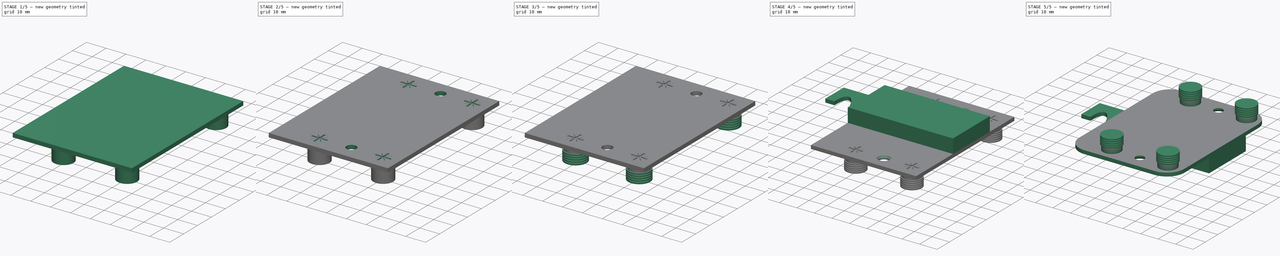
[diagram: build sequence overview — one tinted view per stage of 5, left to right]
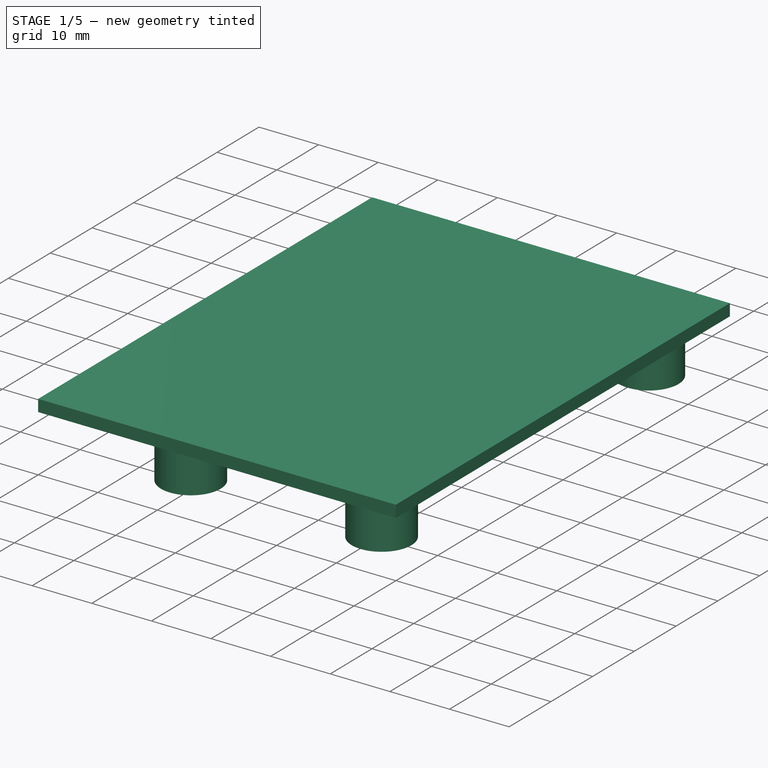
[diagram: stage 1 of 5 — iso view after this stage's code; geometry added in this stage tinted green]
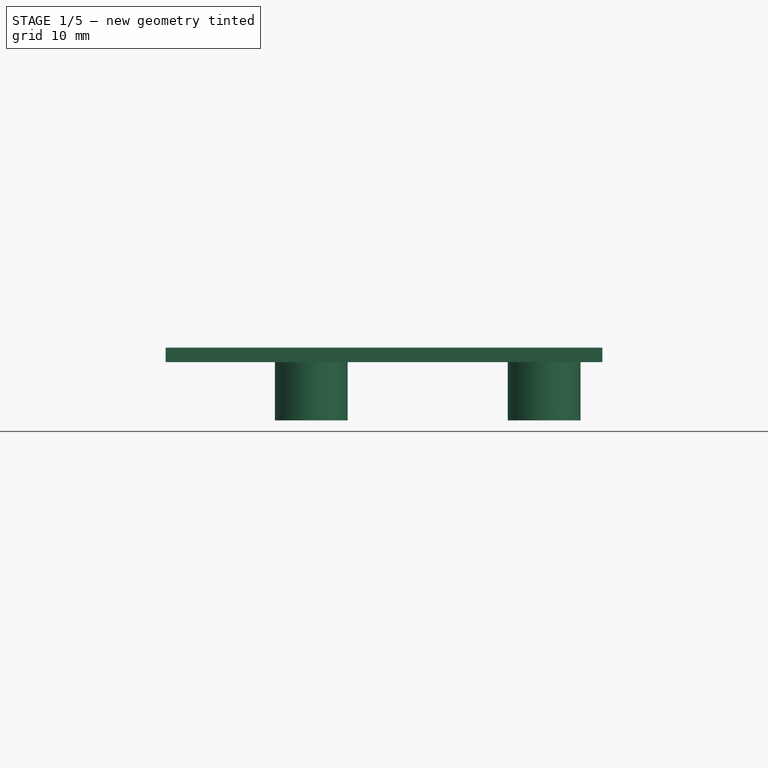
[diagram: stage 1 of 5 — front view after this stage's code; geometry added in this stage tinted green]
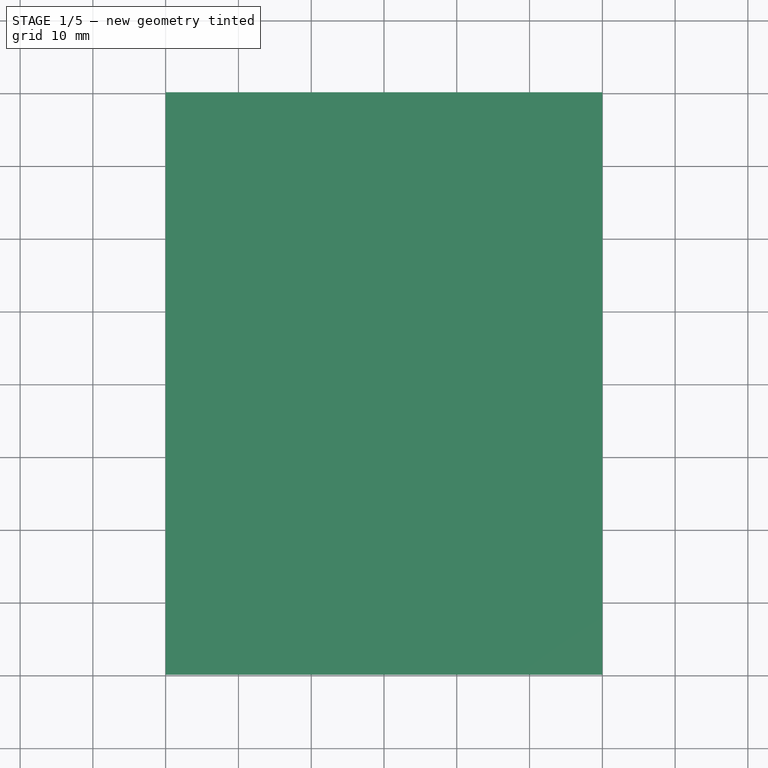
[diagram: stage 1 of 5 — top view after this stage's code; geometry added in this stage tinted green]
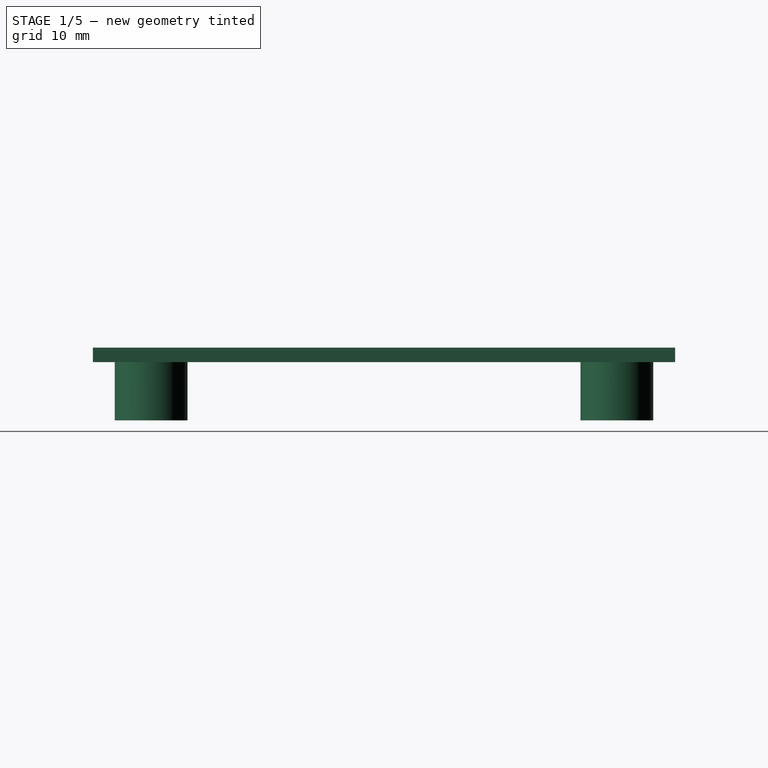
[diagram: stage 1 of 5 — right view after this stage's code; geometry added in this stage tinted green]
FCSTD DOCUMENT  (FreeCAD 1.1R20260325 (Git shallow))
Label: msf070
License: All rights reserved
LicenseURL: https://en.wikipedia.org/wiki/All_rights_reserved
objects: Sketcher::SketchObject×8, PartDesign::Mirrored×7, PartDesign::Pad×5, PartDesign::MultiTransform×4, PartDesign::Plane×2, App::LinkGroup×2, App::Point×2, PartDesign::Pocket×1, PartDesign::Groove×1, PartDesign::Chamfer×1, PartDesign::Fillet×1, PartDesign::Hole×1, PartDesign::Body×1, App::Part×1, Part::FeaturePython×1
note: 72 computed .brp shape members not serialized (recipe doc carries the construction recipe); baked Part::Feature solids carry a one-line shape summary decoded from their .brp

FEATURE [Sketcher::SketchObject] Sketch
  ArcFitTolerance = 0
  ExternalTypes = [0]
  FullyConstrained = true
  MakeInternals = false
  MapMode = 5
  _ExternalGeoVersion = 0
  sketch-geometry (4):
    g0: LineSegment StartX=0 StartY=0 StartZ=0 EndX=60 EndY=0 EndZ=0
    g1: LineSegment StartX=60 StartY=0 StartZ=0 EndX=60 EndY=-80 EndZ=0
    g2: LineSegment StartX=60 StartY=-80 StartZ=0 EndX=0 EndY=-80 EndZ=0
    g3: LineSegment StartX=0 StartY=-80 StartZ=0 EndX=0 EndY=0 EndZ=0
  constraints (11):
    c: Coincident(g0,g1)
    c: Coincident(g1,g2)
    c: Coincident(g2,g3)
    c: Coincident(g3,g0)
    c: Horizontal(g0)
    c: Horizontal(g2)
    c: Vertical(g1)
    c: Vertical(g3)
    c: DistanceX(g0,g0) = 60
    c: DistanceY(g1,g1) = 80
    c: Coincident(g0,g-1)
FEATURE [PartDesign::Pad] Pad
  Direction = (0,0,1)
  Length = 2
  Length2 = 10
  Profile = -> Sketch
  ReferenceAxis = -> Sketch [N_Axis]
  SideType = 0
  Suppressed = false
  Type = 0
  Type2 = 0
FEATURE [Sketcher::SketchObject] Sketch001
  ArcFitTolerance = 0
  ExternalGeometry = -> [Pad]
  ExternalTypes = [0]
  FullyConstrained = true
  MakeInternals = false
  MapMode = 5
  Placement = pos=(0,0,2) rot=(0,0,1;0rad)
  _ExternalGeoVersion = 0
  sketch-geometry (1):
    g0: Circle CenterX=52 CenterY=-8 CenterZ=0 NormalX=0 NormalY=0 NormalZ=1 AngleXU=0 Radius=5
  constraints (3):
    c: Diameter(g0) = 10
    c: DistanceX(g0,g-5) = 8
    c: DistanceY(g0,g-5) = 8
FEATURE [PartDesign::Pad] Pad001
  BaseFeature = -> Pad
  Direction = (0,0,1)
  Length = 10
  Length2 = 10
  Profile = -> Sketch001
  ReferenceAxis = -> Sketch001 [N_Axis]
  Reversed = true
  SideType = 0
  Suppressed = false
  Type = 0
  Type2 = 0
FEATURE [PartDesign::Plane] DatumPlane
  AttachmentOffset = pos=(36,0,0) rot=(0,1,0;1.5708rad)
  Length = 64.4914
  MapMode = 5
  Placement = pos=(36,0,2) rot=(0,1,0;1.5708rad)
  ResizeMode = 0
  Width = 119.491
FEATURE [PartDesign::Plane] DatumPlane001
  AttachmentOffset = pos=(0,0,-40) rot=(0,0,1;0rad)
  Length = 98.0384
  MapMode = 5
  Placement = pos=(0,-40,9e-15) rot=(0,0.707107,0.707107;3.14159rad)
  ResizeMode = 0
  Width = 63.0384
FEATURE [PartDesign::Mirrored] Mirrored
  MirrorPlane = -> DatumPlane
  Suppressed = false
  TransformMode = 0
FEATURE [PartDesign::Mirrored] Mirrored001
  MirrorPlane = -> DatumPlane001
  Suppressed = false
  TransformMode = 0
FEATURE [PartDesign::MultiTransform] MultiTransform
  BaseFeature = -> Pad001
  Originals = -> [Pad001]
  Suppressed = false
  TransformMode = 0
  Transformations = -> [Mirrored,Mirrored001]
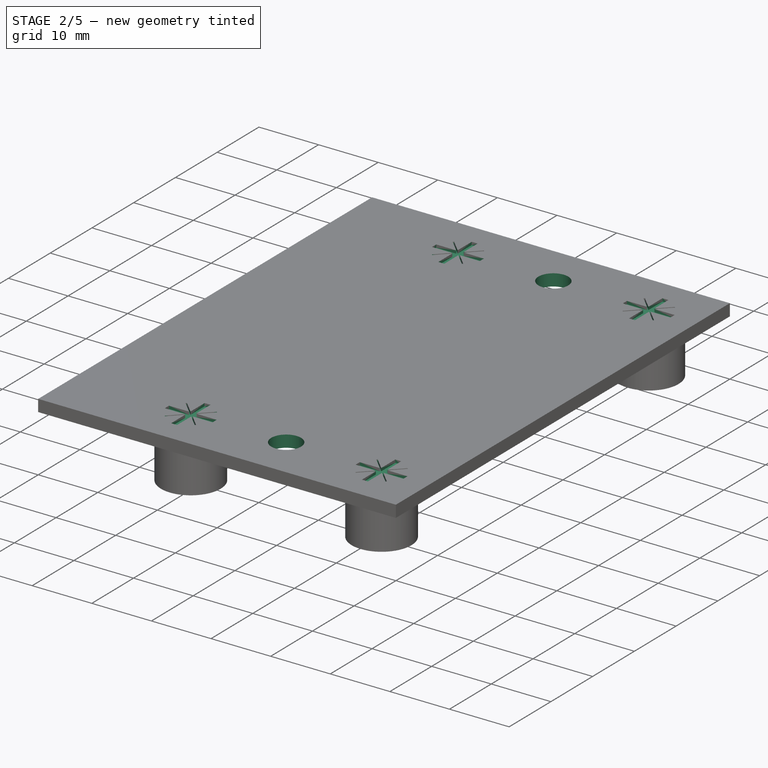
[diagram: stage 2 of 5 — iso view after this stage's code; geometry added in this stage tinted green]
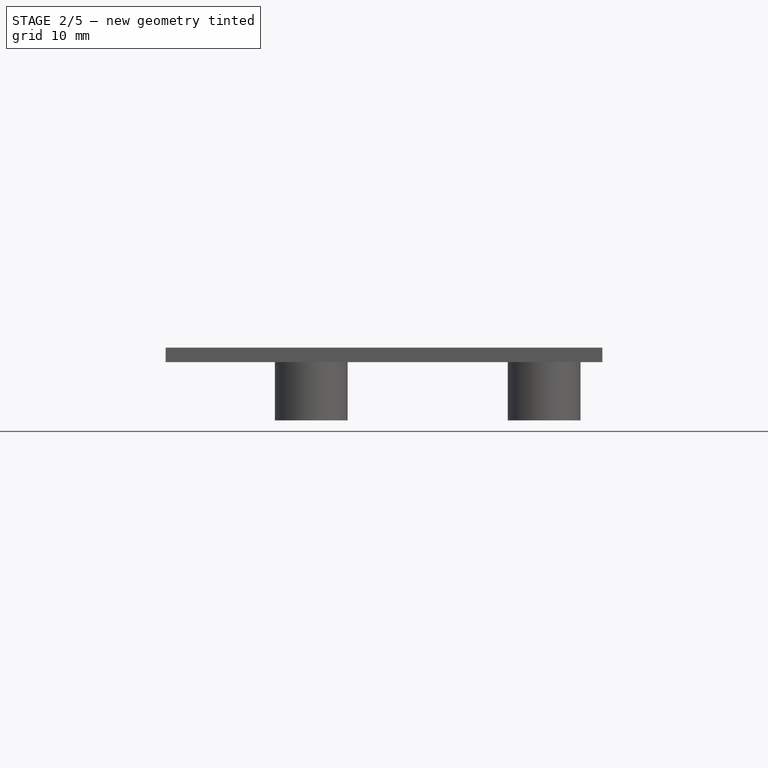
[diagram: stage 2 of 5 — front view after this stage's code; geometry added in this stage tinted green]
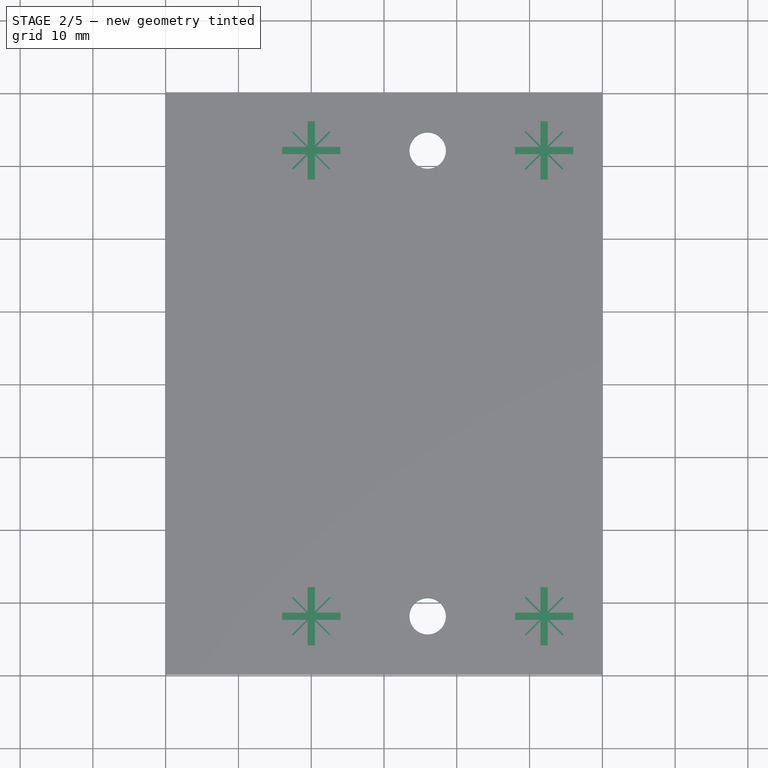
[diagram: stage 2 of 5 — top view after this stage's code; geometry added in this stage tinted green]
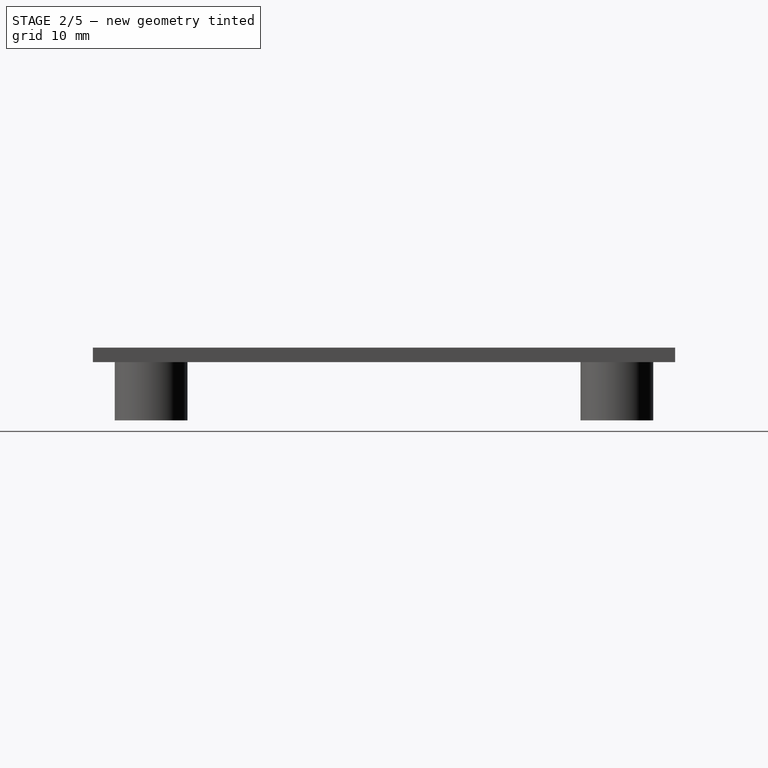
[diagram: stage 2 of 5 — right view after this stage's code; geometry added in this stage tinted green]
FEATURE [Sketcher::SketchObject] Sketch002
  ArcFitTolerance = 0
  ExternalGeometry = -> [MultiTransform]
  ExternalTypes = [0]
  FullyConstrained = false
  MakeInternals = false
  MapMode = 5
  Placement = pos=(0,0,2) rot=(0,0,1;0rad)
  _ExternalGeoVersion = 0
  sketch-geometry (25):
    g0: LineSegment StartX=52.6414 StartY=-8.5 StartZ=0 EndX=56 EndY=-8.5 EndZ=0
    g1: LineSegment StartX=56 StartY=-8.5 StartZ=0 EndX=56 EndY=-7.5 EndZ=0
    g2: LineSegment StartX=56 StartY=-7.5 StartZ=0 EndX=52.6414 EndY=-7.5 EndZ=0
    g3: LineSegment StartX=52.6414 StartY=-7.5 StartZ=0 EndX=54.6414 EndY=-5.5 EndZ=0
    g4: LineSegment StartX=54.6414 StartY=-5.5 StartZ=0 EndX=54.5 EndY=-5.35858 EndZ=0
    g5: LineSegment StartX=54.5 StartY=-5.35858 StartZ=0 EndX=52.5 EndY=-7.35858 EndZ=0
    g6: LineSegment StartX=52.5 StartY=-7.35858 StartZ=0 EndX=52.5 EndY=-4 EndZ=0
    g7: LineSegment StartX=52.5 StartY=-4 StartZ=0 EndX=51.5 EndY=-4 EndZ=0
    g8: LineSegment StartX=51.5 StartY=-4 StartZ=0 EndX=51.5 EndY=-7.35858 EndZ=0
    g9: LineSegment StartX=51.5 StartY=-7.35858 StartZ=0 EndX=49.5 EndY=-5.35858 EndZ=0
    g10: LineSegment StartX=49.5 StartY=-5.35858 StartZ=0 EndX=49.3586 EndY=-5.5 EndZ=0
    g11: LineSegment StartX=49.3586 StartY=-5.5 StartZ=0 EndX=51.3586 EndY=-7.5 EndZ=0
    g12: LineSegment StartX=51.3586 StartY=-7.5 StartZ=0 EndX=48 EndY=-7.5 EndZ=0
    g13: LineSegment StartX=48 StartY=-7.5 StartZ=0 EndX=48 EndY=-8.5 EndZ=0
    g14: LineSegment StartX=52.6414 StartY=-8.5 StartZ=0 EndX=54.6414 EndY=-10.5 EndZ=0
    g15: LineSegment StartX=54.6414 StartY=-10.5 StartZ=0 EndX=54.5 EndY=-10.6414 EndZ=0
    g16: LineSegment StartX=54.5 StartY=-10.6414 StartZ=0 EndX=52.5 EndY=-8.64142 EndZ=0
    g17: LineSegment StartX=52.5 StartY=-8.64142 StartZ=0 EndX=52.5 EndY=-12 EndZ=0
    g18: LineSegment StartX=52.5 StartY=-12 StartZ=0 EndX=51.5 EndY=-12 EndZ=0
    g19: LineSegment StartX=51.5 StartY=-12 StartZ=0 EndX=51.5 EndY=-8.64142 EndZ=0
    g20: LineSegment StartX=51.5 StartY=-8.64142 StartZ=0 EndX=49.5 EndY=-10.6414 EndZ=0
    g21: LineSegment StartX=49.5 StartY=-10.6414 StartZ=0 EndX=49.3586 EndY=-10.5 EndZ=0
    g22: LineSegment StartX=49.3586 StartY=-10.5 StartZ=0 EndX=51.3586 EndY=-8.5 EndZ=0
    g23: LineSegment StartX=51.3586 StartY=-8.5 StartZ=0 EndX=48 EndY=-8.5 EndZ=0
    g24: Circle [constr] CenterX=52 CenterY=-8 CenterZ=0 NormalX=0 NormalY=0 NormalZ=1 AngleXU=0 Radius=0.813278
  constraints (71):
    c: Coincident(g0,g1)
    c: Coincident(g1,g2)
    c: Coincident(g2,g3)
    c: Coincident(g3,g4)
    c: Coincident(g4,g5)
    c: Coincident(g5,g6)
    c: Coincident(g6,g7)
    c: Coincident(g7,g8)
    c: Coincident(g8,g9)
    c: Coincident(g9,g10)
    c: Coincident(g10,g11)
    c: Coincident(g11,g12)
    c: Coincident(g12,g13)
    c: Coincident(g0,g14)
    c: Coincident(g14,g15)
    c: Coincident(g15,g16)
    c: Coincident(g16,g17)
    c: Coincident(g17,g18)
    c: Coincident(g18,g19)
    c: Coincident(g19,g20)
    c: Coincident(g20,g21)
    c: Coincident(g21,g22)
    c: Coincident(g22,g23)
    c: Coincident(g23,g13)
    c: Equal(g1,g13)
    c: Equal(g18,g7)
    c: Equal(g6,g8)
    c: Equal(g10,g4)
    c: Equal(g4,g15)
    c: Equal(g15,g21)
    c: Equal(g0,g2)
    c: Equal(g2,g6)
    c: Equal(g8,g12)
    c: Equal(g12,g19)
    c: Equal(g19,g17)
    c: Equal(g14,g16)
    c: Equal(g16,g20)
    c: Equal(g20,g22)
    c: Equal(g22,g11)
    c: Equal(g11,g9)
    c: Equal(g9,g5)
    c: Equal(g5,g3)
    c: Angle(g1,g0) = 1.5708
    c: Angle(g2,g1) = 1.5708
    c: Angle(g4,g3) = 1.5708
    c: Angle(g5,g4) = 1.5708
    c: Angle(g7,g6) = 1.5708
    c: Angle(g8,g7) = 1.5708
    c: Angle(g10,g9) = 1.5708
    c: Angle(g11,g10) = 1.5708
    c: Angle(g13,g12) = 1.5708
    c: Angle(g23,g13) = 1.5708
    c: Angle(g21,g22) = 1.5708
    c: Angle(g20,g21) = 1.5708
    c: Angle(g18,g19) = 1.5708
    c: Angle(g17,g18) = 1.5708
    c: Angle(g15,g16) = 1.5708
    c: Angle(g14,g15) = 1.5708
    c: Distance(g22,g19) = 0.2
    c: Distance(g0,g2) = 1
    c: Equal(g13,g7)
    c: Parallel(g0,g23)
    c: Parallel(g6,g17)
    c: Angle(g2,g6) = 1.5708
    c: Angle(g20,g16) = 1.5708
    c: Angle(g5,g9) = 1.5708
    c: PointOnObject(g8,g24)
    c: PointOnObject(g11,g24)
    c: PointOnObject(g22,g24)
    c: PointOnObject(g19,g24)
    c: Horizontal(g2)
FEATURE [PartDesign::Pocket] Pocket
  BaseFeature = -> MultiTransform
  Direction = (0,0,-1)
  Length = 0.5
  Length2 = 5
  Profile = -> Sketch002
  ReferenceAxis = -> Sketch002 [N_Axis]
  SideType = 0
  Suppressed = false
  Type = 0
  Type2 = 0
FEATURE [PartDesign::Mirrored] Mirrored002
  MirrorPlane = -> DatumPlane
  Suppressed = false
  TransformMode = 0
FEATURE [PartDesign::Mirrored] Mirrored003
  MirrorPlane = -> DatumPlane001
  Suppressed = false
  TransformMode = 0
FEATURE [PartDesign::MultiTransform] MultiTransform001
  BaseFeature = -> Pocket
  Originals = -> [Pocket]
  Suppressed = false
  TransformMode = 0
  Transformations = -> [Mirrored002,Mirrored003]
FEATURE [Sketcher::SketchObject] Sketch003
  ArcFitTolerance = 0
  ExternalGeometry = -> [MultiTransform001]
  ExternalTypes = [0]
  FullyConstrained = true
  MakeInternals = false
  MapMode = 5
  Placement = pos=(0,0,2) rot=(0,0,1;0rad)
  _ExternalGeoVersion = 0
  sketch-geometry (1):
    g0: Circle CenterX=36 CenterY=-8 CenterZ=0 NormalX=0 NormalY=0 NormalZ=1 AngleXU=0 Radius=2.5
  constraints (3):
    c: Diameter(g0) = 5
    c: DistanceY(g0,g-4) = 8
    c: DistanceX(g0,g-4) = 24
FEATURE [PartDesign::Mirrored] Mirrored004
  MirrorPlane = -> DatumPlane001
  Suppressed = false
  TransformMode = 0
FEATURE [PartDesign::MultiTransform] MultiTransform002
  BaseFeature = -> MultiTransform001
  Suppressed = false
  TransformMode = 0
  Transformations = -> [Mirrored004]
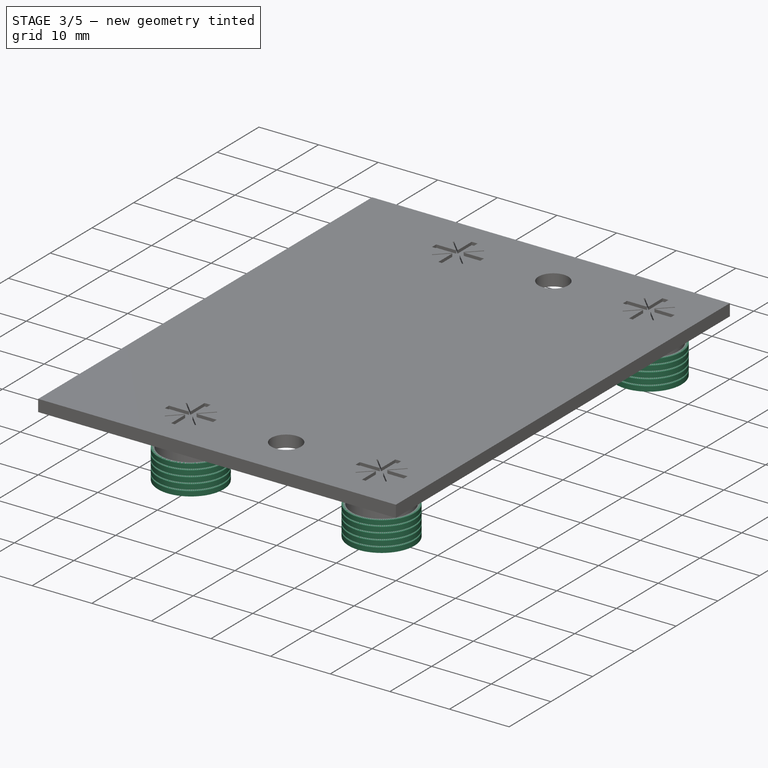
[diagram: stage 3 of 5 — iso view after this stage's code; geometry added in this stage tinted green]
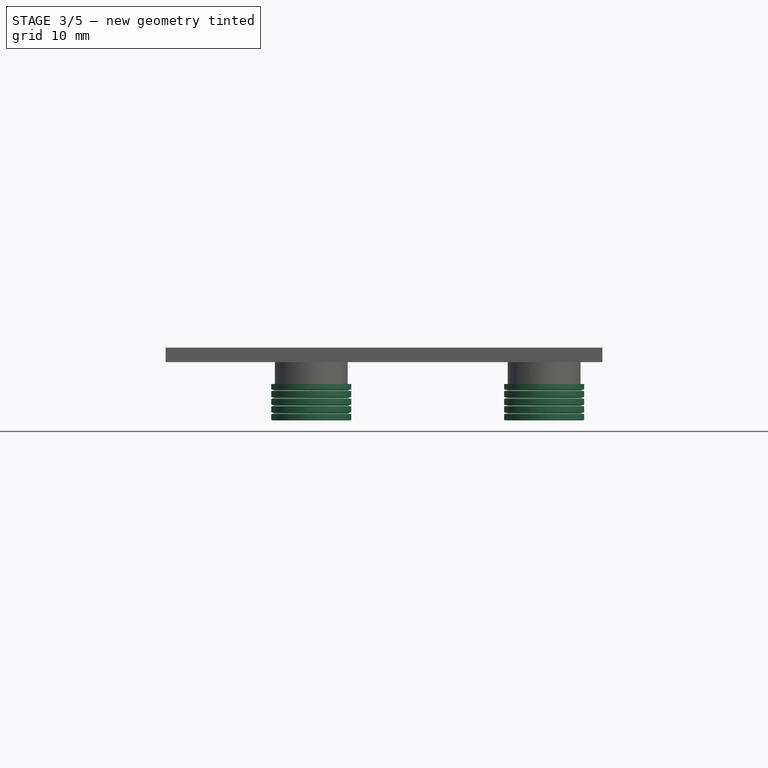
[diagram: stage 3 of 5 — front view after this stage's code; geometry added in this stage tinted green]
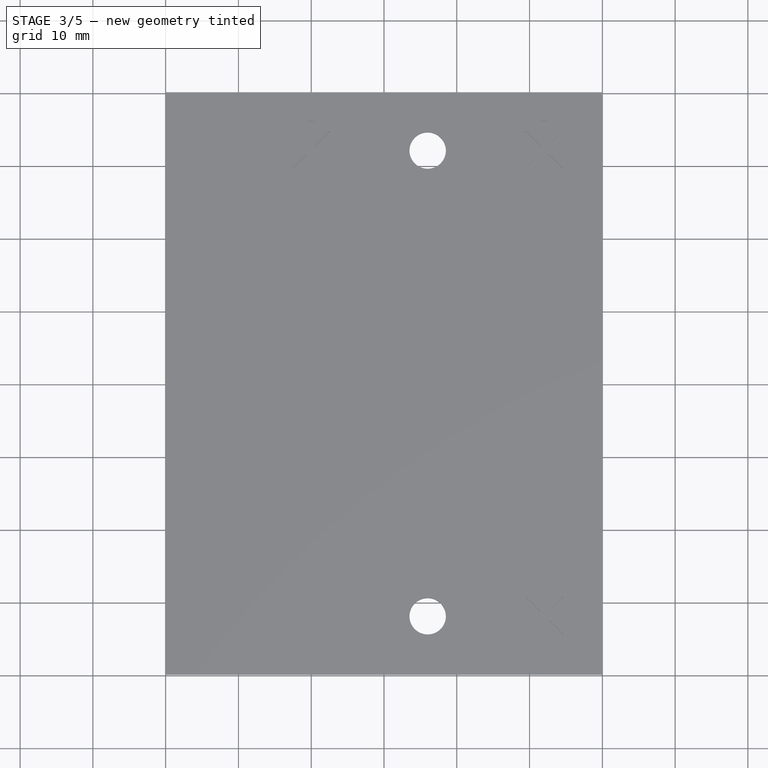
[diagram: stage 3 of 5 — top view after this stage's code; geometry added in this stage tinted green]
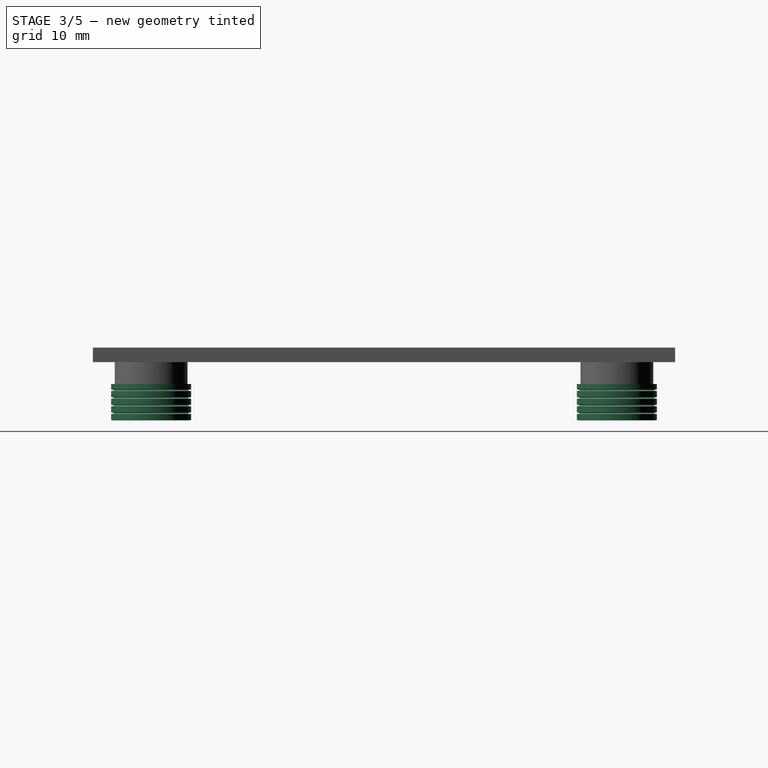
[diagram: stage 3 of 5 — right view after this stage's code; geometry added in this stage tinted green]
FEATURE [Sketcher::SketchObject] Sketch004
  ArcFitTolerance = 0
  ExternalGeometry = -> [MultiTransform002]
  ExternalTypes = [0]
  FullyConstrained = true
  MakeInternals = false
  MapMode = 5
  Placement = pos=(0,0,-8) rot=(1,0,0;3.14159rad)
  _ExternalGeoVersion = 0
  sketch-geometry (1):
    g0: Circle CenterX=20 CenterY=8 CenterZ=0 NormalX=0 NormalY=0 NormalZ=1 AngleXU=0 Radius=5.5
  constraints (2):
    c: Coincident(g0,g-3)
    c: Diameter(g0) = 11
FEATURE [PartDesign::Pad] Pad002
  BaseFeature = -> MultiTransform002
  Direction = (0,-1e-16,-1)
  Length = 5
  Length2 = 10
  Profile = -> Sketch004
  ReferenceAxis = -> Sketch004 [N_Axis]
  Reversed = true
  SideType = 0
  Suppressed = false
  Type = 0
  Type2 = 0
FEATURE [Sketcher::SketchObject] Sketch005
  ArcFitTolerance = 0
  AttachmentOffset = pos=(-8,0,20) rot=(0,0,1;0rad)
  ExternalTypes = [0]
  FullyConstrained = true
  MakeInternals = false
  MapMode = 5
  Placement = pos=(20,-8,0) rot=(0.57735,0.57735,0.57735;2.0944rad)
  _ExternalGeoVersion = 0
  sketch-geometry (13):
    g0: LineSegment StartX=7.52 StartY=-2.22 StartZ=0 EndX=5.03 EndY=-2.79 EndZ=0
    g1: LineSegment StartX=5.03 StartY=-2.79 StartZ=0 EndX=6.9897 EndY=-3.39312 EndZ=0
    g2: LineSegment StartX=6.9897 StartY=-3.39312 StartZ=0 EndX=5.03 EndY=-3.84172 EndZ=0
    g3: LineSegment StartX=5.03 StartY=-3.84172 StartZ=0 EndX=6.9897 EndY=-4.44484 EndZ=0
    g4: LineSegment StartX=6.9897 StartY=-4.44484 StartZ=0 EndX=5.03 EndY=-4.89344 EndZ=0
    g5: LineSegment StartX=5.03 StartY=-4.89344 StartZ=0 EndX=6.9897 EndY=-5.49656 EndZ=0
    g6: LineSegment StartX=6.9897 StartY=-5.49656 StartZ=0 EndX=5.03 EndY=-5.94516 EndZ=0
    g7: LineSegment StartX=5.03 StartY=-5.94516 StartZ=0 EndX=6.9897 EndY=-6.54828 EndZ=0
    g8: LineSegment StartX=6.9897 StartY=-6.54828 StartZ=0 EndX=5.03 EndY=-6.99688 EndZ=0
    g9: LineSegment StartX=5.03 StartY=-6.99688 StartZ=0 EndX=6.9897 EndY=-7.6 EndZ=0
    g10: LineSegment StartX=6.9897 StartY=-7.6 StartZ=0 EndX=5.03 EndY=-8.04861 EndZ=0
    g11: LineSegment StartX=5.03 StartY=-8.04861 StartZ=0 EndX=7.55 EndY=-8.19 EndZ=0
    g12: LineSegment StartX=7.55 StartY=-8.19 StartZ=0 EndX=7.52 EndY=-2.22 EndZ=0
  constraints (39):
    c: Coincident(g0,g1)
    c: Coincident(g1,g2)
    c: Coincident(g2,g3)
    c: Coincident(g3,g4)
    c: Coincident(g4,g5)
    c: Coincident(g5,g6)
    c: Coincident(g6,g7)
    c: Coincident(g7,g8)
    c: Coincident(g8,g9)
    c: Coincident(g9,g10)
    c: Coincident(g10,g11)
    c: Coincident(g11,g12)
    c: Coincident(g12,g0)
    c: Vertical(g1,g3)
    c: Vertical(g3,g5)
    c: Vertical(g5,g7)
    c: Vertical(g7,g9)
    c: Vertical(g0,g2)
    c: Vertical(g2,g4)
    c: Vertical(g4,g6)
    c: Vertical(g6,g8)
    c: Vertical(g8,g10)
    c: Angle(g1,g2) = 0.523599
    c: Angle(g3,g4) = 0.523599
    c: Angle(g5,g6) = 0.523599
    c: Angle(g7,g8) = 0.523599
    c: Angle(g9,g10) = 0.523599
    c: Angle(g3,g2) = 0.523599
    c: Angle(g5,g4) = 0.523599
    c: Angle(g7,g6) = 0.523599
    c: Angle(g9,g8) = 0.523599
    c: Angle(g1,g0) = 0.523599
    c: DistanceY(g0,g-1) = 2.22
    c: DistanceY(g12,g-1) = 8.19
    c: DistanceX(g-1,g0) = 7.52
    c: DistanceX(g-1,g0) = 5.03
    c: DistanceX(g-1,g11) = 7.55
    c: DistanceY(g9,g-1) = 7.6
    c: DistanceY(g0,g-1) = 2.79
FEATURE [PartDesign::Groove] Groove
  Angle = 360
  Angle2 = 0
  Axis = (1e-16,-1e-16,1)
  Base = (20,-8,0)
  BaseFeature = -> Pad002
  Profile = -> Sketch005
  ReferenceAxis = -> Sketch005 [V_Axis]
  Suppressed = false
  Type = 0
FEATURE [PartDesign::Mirrored] Mirrored005
  MirrorPlane = -> DatumPlane
  Suppressed = false
  TransformMode = 0
FEATURE [PartDesign::Mirrored] Mirrored006
  MirrorPlane = -> DatumPlane001
  Suppressed = false
  TransformMode = 0
FEATURE [PartDesign::MultiTransform] MultiTransform003
  BaseFeature = -> Groove
  Originals = -> [Pad002,Groove]
  Suppressed = false
  TransformMode = 0
  Transformations = -> [Mirrored005,Mirrored006]
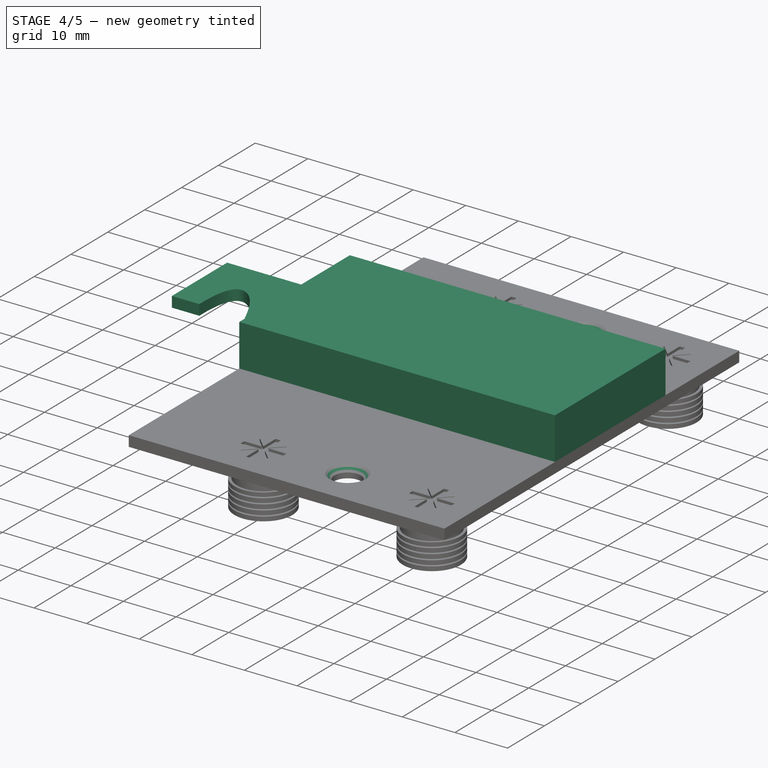
[diagram: stage 4 of 5 — iso view after this stage's code; geometry added in this stage tinted green]
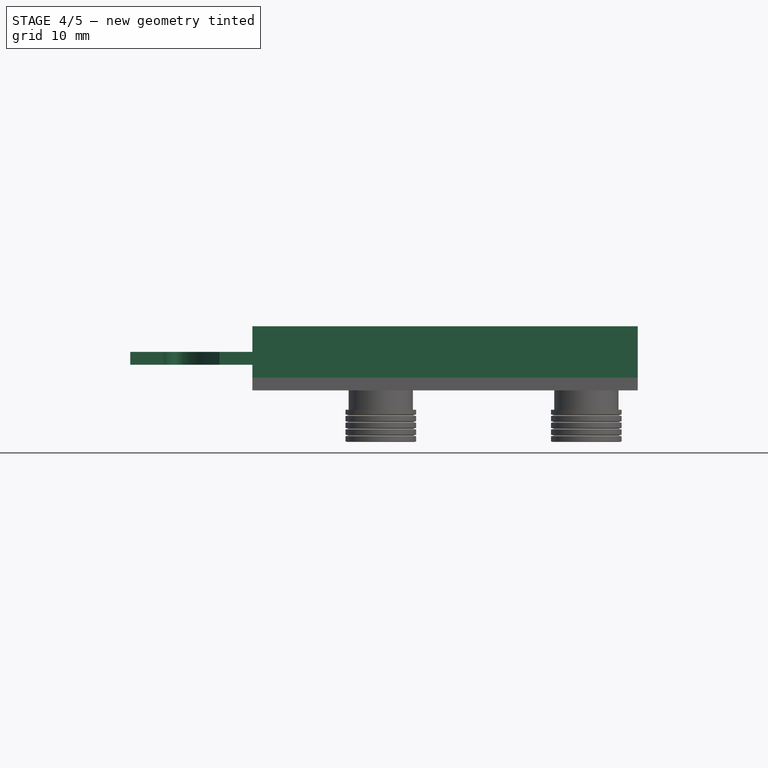
[diagram: stage 4 of 5 — front view after this stage's code; geometry added in this stage tinted green]
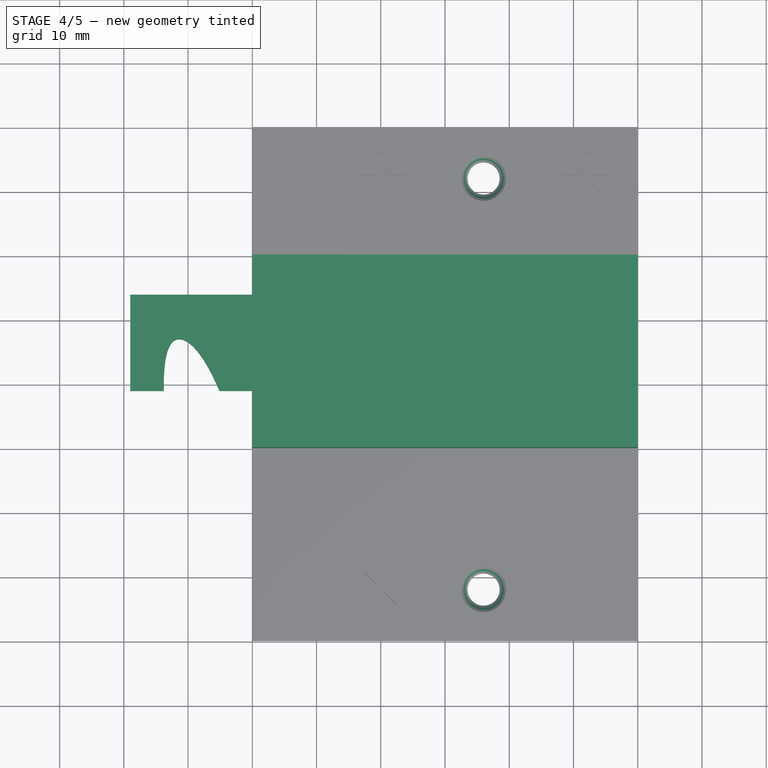
[diagram: stage 4 of 5 — top view after this stage's code; geometry added in this stage tinted green]
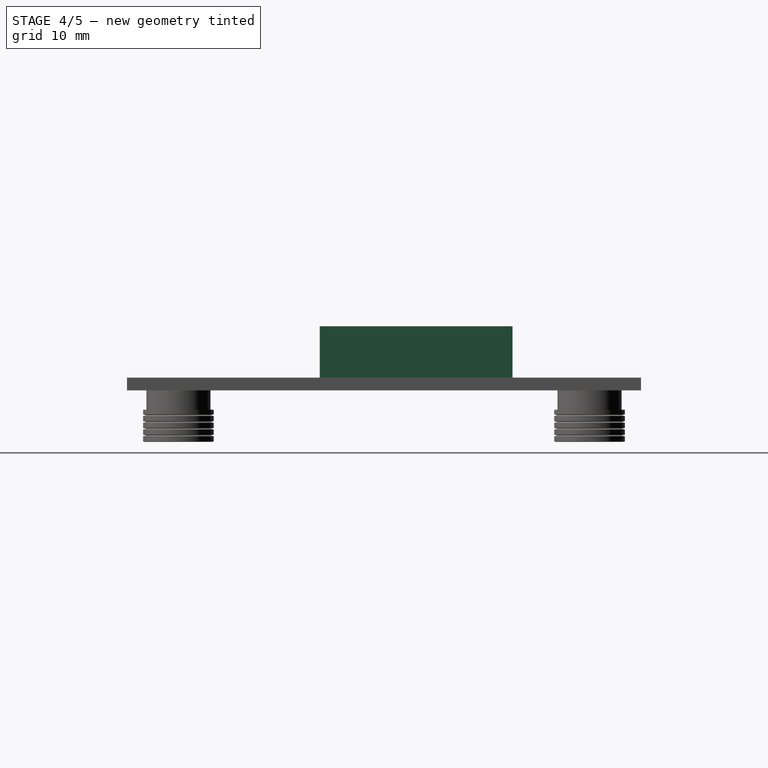
[diagram: stage 4 of 5 — right view after this stage's code; geometry added in this stage tinted green]
FEATURE [Sketcher::SketchObject] Sketch006
  ArcFitTolerance = 0
  ExternalGeometry = -> [MultiTransform003]
  ExternalTypes = [0]
  FullyConstrained = true
  MakeInternals = false
  MapMode = 5
  Placement = pos=(0,0,2) rot=(0,0,1;0rad)
  _ExternalGeoVersion = 0
  sketch-geometry (4):
    g0: LineSegment StartX=60 StartY=-50 StartZ=0 EndX=0 EndY=-50 EndZ=0
    g1: LineSegment StartX=0 StartY=-50 StartZ=0 EndX=0 EndY=-20 EndZ=0
    g2: LineSegment StartX=0 StartY=-20 StartZ=0 EndX=60 EndY=-20 EndZ=0
    g3: LineSegment StartX=60 StartY=-20 StartZ=0 EndX=60 EndY=-50 EndZ=0
  constraints (12):
    c: Coincident(g0,g1)
    c: Coincident(g1,g2)
    c: Coincident(g2,g3)
    c: Coincident(g3,g0)
    c: Horizontal(g0)
    c: Horizontal(g2)
    c: Vertical(g1)
    c: Vertical(g3)
    c: PointOnObject(g0,g-3)
    c: PointOnObject(g1,g-2)
    c: DistanceY(g1,g-1) = 20
    c: DistanceY(g1,g1) = 30
FEATURE [PartDesign::Pad] Pad003
  BaseFeature = -> MultiTransform003
  Direction = (0,0,1)
  Length = 8
  Length2 = 10
  Profile = -> Sketch006
  ReferenceAxis = -> Sketch006 [N_Axis]
  SideType = 0
  Suppressed = false
  Type = 0
  Type2 = 0
FEATURE [Sketcher::SketchObject] Sketch007
  ArcFitTolerance = 0
  AttachmentOffset = pos=(0,0,-5) rot=(0,0,1;0rad)
  ExternalTypes = [0]
  FullyConstrained = true
  MakeInternals = false
  MapMode = 5
  Placement = pos=(0,0,5) rot=(0,0,1;0rad)
  _ExternalGeoVersion = 0
  sketch-geometry (14):
    g0: LineSegment StartX=49.15 StartY=-26.17 StartZ=0 EndX=-19 EndY=-26.17 EndZ=0
    g1: LineSegment StartX=-19 StartY=-26.17 StartZ=0 EndX=-19 EndY=-41.17 EndZ=0
    g2: LineSegment StartX=49.15 StartY=-41.17 StartZ=0 EndX=49.15 EndY=-26.17 EndZ=0
    g3: LineSegment StartX=-19 StartY=-41.17 StartZ=0 EndX=-13.78 EndY=-41.17 EndZ=0
    g4-g8: Circle [constr] x5 (B-spline internal-alignment scaffolding for g9; pole/knot coordinates omitted)
    g9: BSplineCurve PolesCount=5 KnotsCount=3 Degree=3 IsPeriodic=0
    g10: GeomPoint [constr] X=-13.78 Y=-41.17 Z=0
    g11: GeomPoint [constr] X=-11.02 Y=-33.16 Z=0
    g12: GeomPoint [constr] X=-5.11 Y=-41.17 Z=0
    g13: LineSegment StartX=-5.11 StartY=-41.17 StartZ=0 EndX=49.15 EndY=-41.17 EndZ=0
  constraints (30):
    c: Coincident(g0,g1)
    c: Coincident(g2,g0)
    c: Horizontal(g0)
    c: Vertical(g1)
    c: Vertical(g2)
    c: DistanceY(g2,g2) = 15
    c: DistanceX(g0,g-1) = 19
    c: DistanceX(g1,g2) = 68.15
    c: Coincident(g1,g3)
    c: Horizontal(g3)
    c: Weight(g4) = 1
    c: Coincident(g9,g3)
    c: Equal(g4, g5-g8) x4
    c: InternalAlignment(g4-g8 -> g9) x5
    c: InternalAlignment(g10,g9)
    c: InternalAlignment(g11,g9)
    c: InternalAlignment(g12,g9)
    c: Coincident(g13,g9)
    c: Coincident(g13,g2)
    c: Horizontal(g13)
    c: DistanceX(g13,g13) = 54.26
    c: DistanceY(g11,g-1) = 33.16
    c: DistanceY(g6,g-1) = 30.97
    c: DistanceY(g7,g-1) = 36.01
    c: DistanceX(g5,g-1) = 13.87
    c: DistanceX(g7) = -7.3
    c: Horizontal(g3,g9)
    c: DistanceY(g1,g-1) = 41.17
    c: DistanceX(g3,g-1) = 13.78
    c: DistanceX(g11,g-1) = 11.02
FEATURE [PartDesign::Pad] Pad004
  BaseFeature = -> Pad003
  Direction = (0,0,1)
  Length = 2
  Length2 = 10
  Profile = -> Sketch007
  ReferenceAxis = -> Sketch007 [N_Axis]
  SideType = 2
  Suppressed = false
  Type = 0
  Type2 = 0
FEATURE [PartDesign::Chamfer] Chamfer
  Angle = 45
  Base = -> Pad004 [Edge24,Edge29]
  BaseFeature = -> Pad004
  ChamferType = 0
  FlipDirection = false
  Size = 1
  Size2 = 1
  SupportTransform = false
  Suppressed = false
  UseAllEdges = false
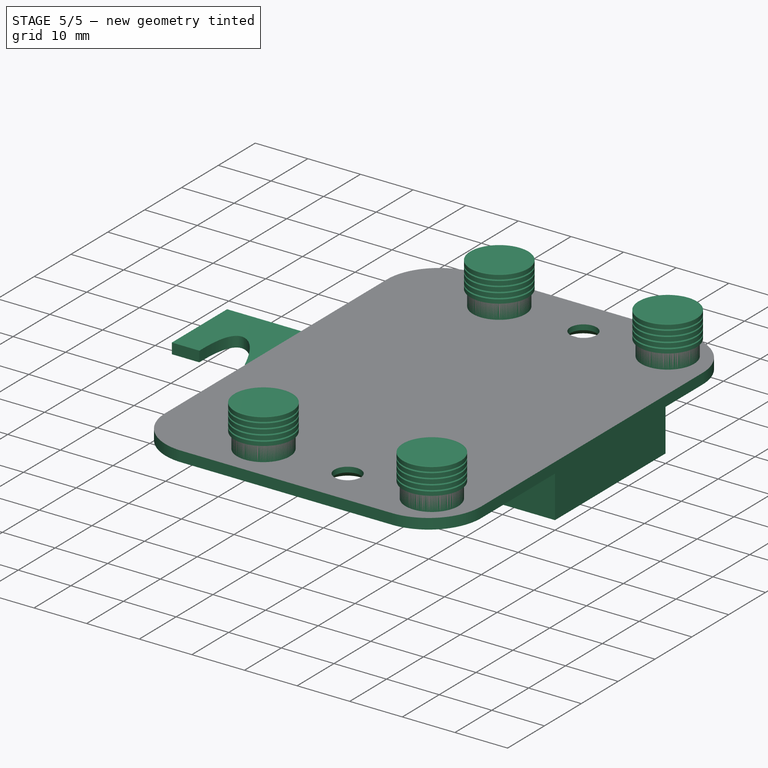
[diagram: stage 5 of 5 — iso view after this stage's code; geometry added in this stage tinted green]
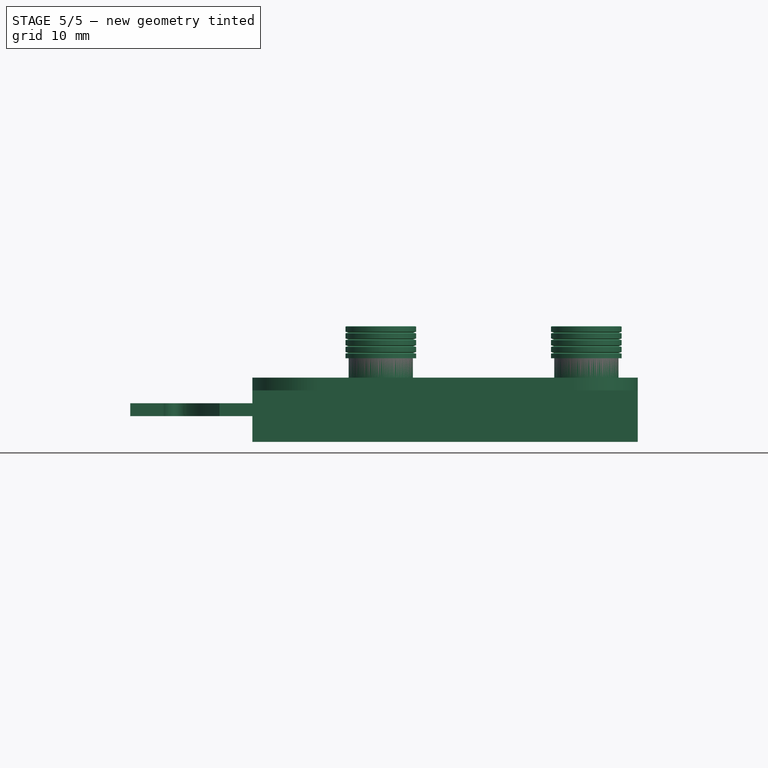
[diagram: stage 5 of 5 — front view after this stage's code; geometry added in this stage tinted green]
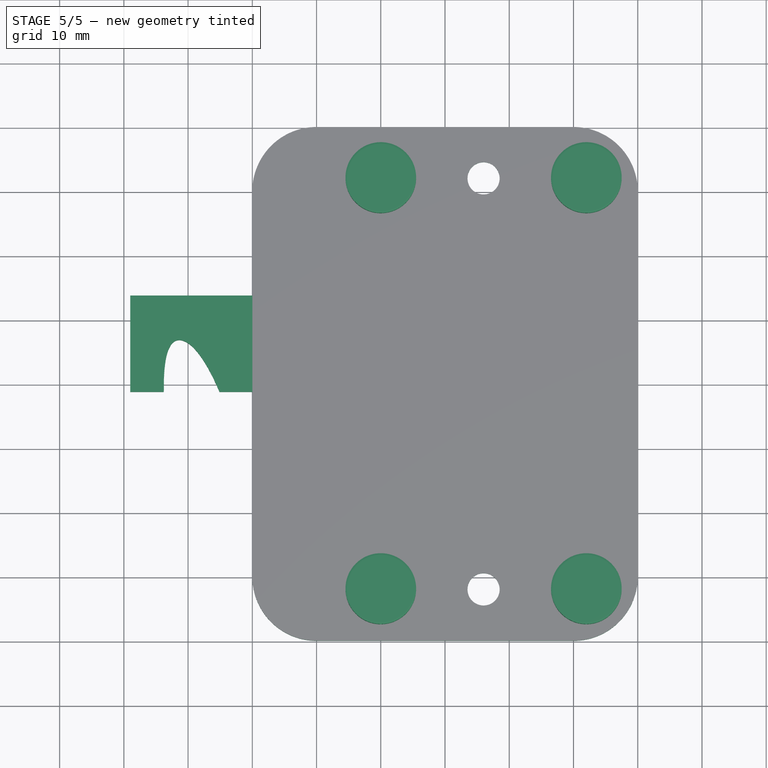
[diagram: stage 5 of 5 — top view after this stage's code; geometry added in this stage tinted green]
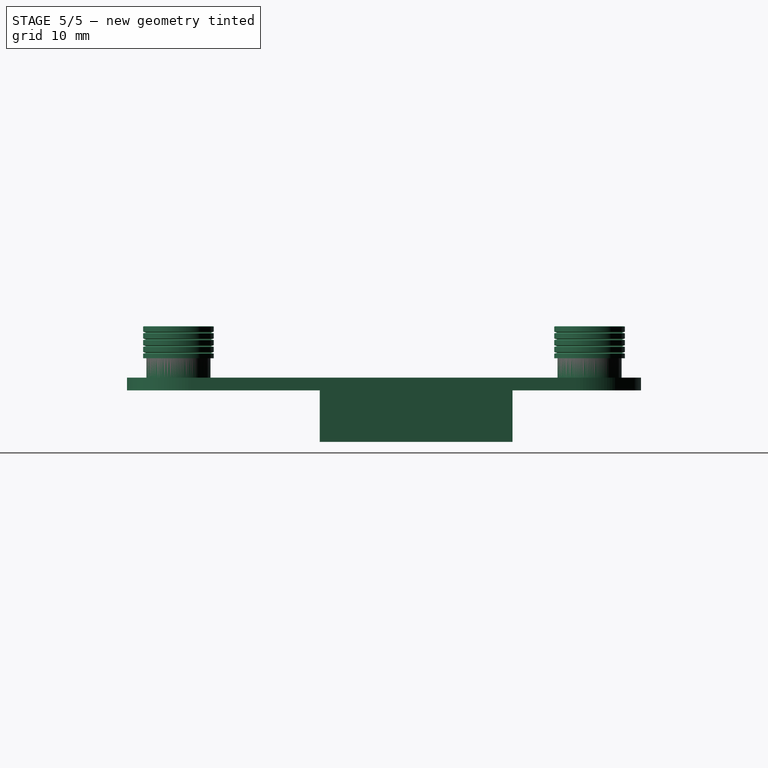
[diagram: stage 5 of 5 — right view after this stage's code; geometry added in this stage tinted green]
FEATURE [PartDesign::Fillet] Fillet
  Base = -> Chamfer [Edge13,Edge20,Edge10,Edge11]
  BaseFeature = -> Chamfer
  Radius = 10
  SupportTransform = false
  Suppressed = false
  UseAllEdges = false
FEATURE [PartDesign::Hole] Hole
  BaseFeature = -> Fillet
  BaseProfileType = 6
  CustomThreadClearance = 0
  Depth = 25
  DepthType = 0
  Diameter = 5
  DrillForDepth = false
  DrillPoint = 1
  DrillPointAngle = 118
  HoleCutCountersinkAngle = 90
  HoleCutCustomValues = false
  HoleCutDepth = 0
  HoleCutDiameter = 0
  HoleCutType = 0
  ModelThread = false
  Profile = -> Sketch003
  Suppressed = false
  Tapered = false
  TaperedAngle = 90
  ThreadClass = 0
  ThreadDepth = 25
  ThreadDepthType = 0
  ThreadDiameter = 5
  ThreadDirection = 0
  ThreadFit = 0
  ThreadSize = 0
  ThreadType = 0
  Threaded = false
  UseCustomThreadClearance = false
FEATURE [PartDesign::Body] Body
  AllowCompound = true
  Group = -> [Sketch,Pad,Sketch001,Pad001,DatumPlane,DatumPlane001,MultiTransform,Mirrored,Mirrored001,Sketch002,Pocket,MultiTransform001,Mirrored002,Mirrored003,Sketch003,MultiTransform002,Mirrored004,Sketch004,Pad002,Sketch005,Groove,MultiTransform003,Mirrored005,Mirrored006,Sketch006,Pad003,Sketch007,Pad004,Chamfer,Fillet,Hole]
  Origin = -> Origin001
  Tip = -> Hole
FEATURE [App::Part] Part
  Group = -> [Body]
  Origin = -> Origin
FEATURE [App::LinkGroup] LinkGroup001  label="Bracket_right_link_this"
  ElementList = -> [Part]
  LinkMode = 0
FEATURE [Part::FeaturePython] Clone  label="Clone, Bracket_left_link_this "  # Draft clone (typed FeaturePython)
  AttacherType = Attacher::AttachEngine3D
  ForceCompound = false
  Fuse = false
  Objects = -> [LinkGroup001]
  Scale = (1,1,-1)
FEATURE [App::LinkGroup] LinkGroup  label="Brackets_Camar_807_hide_both "
  ElementList = -> [LinkGroup001,Clone]
  LinkMode = 0
FEATURE [App::Point] Origin002  label="Origin"
  Role = Origin
FEATURE [App::Point] Origin003  label="Origin"
  Role = Origin
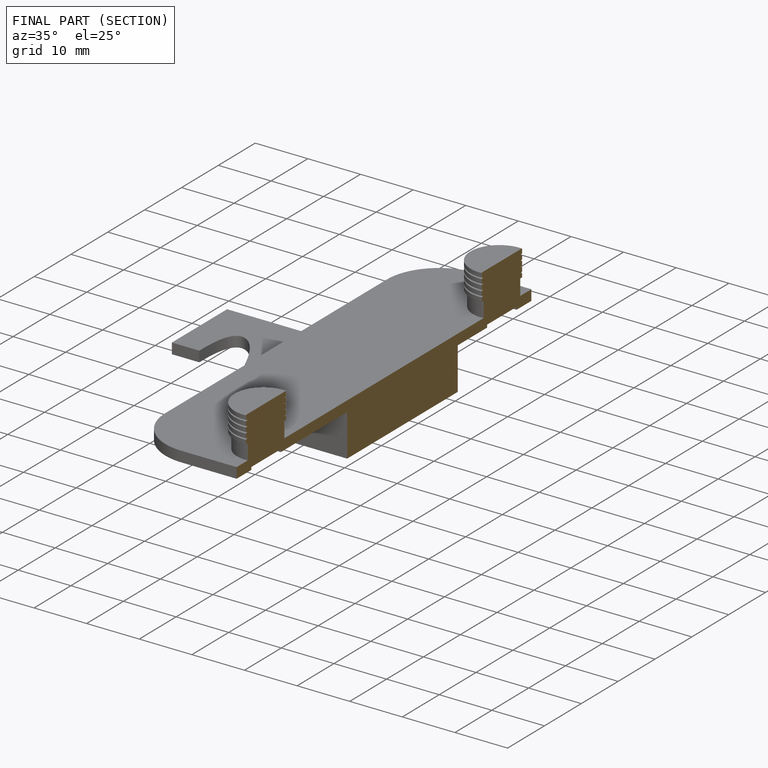
[diagram: finished part — half-section view (interior)]
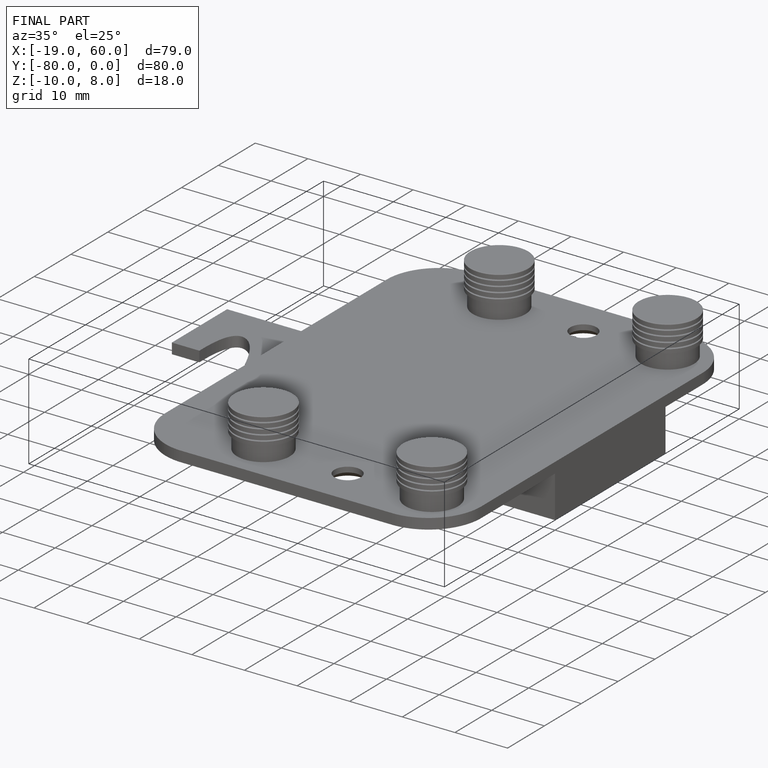
[diagram: finished part — iso view with bounding-box wireframe]
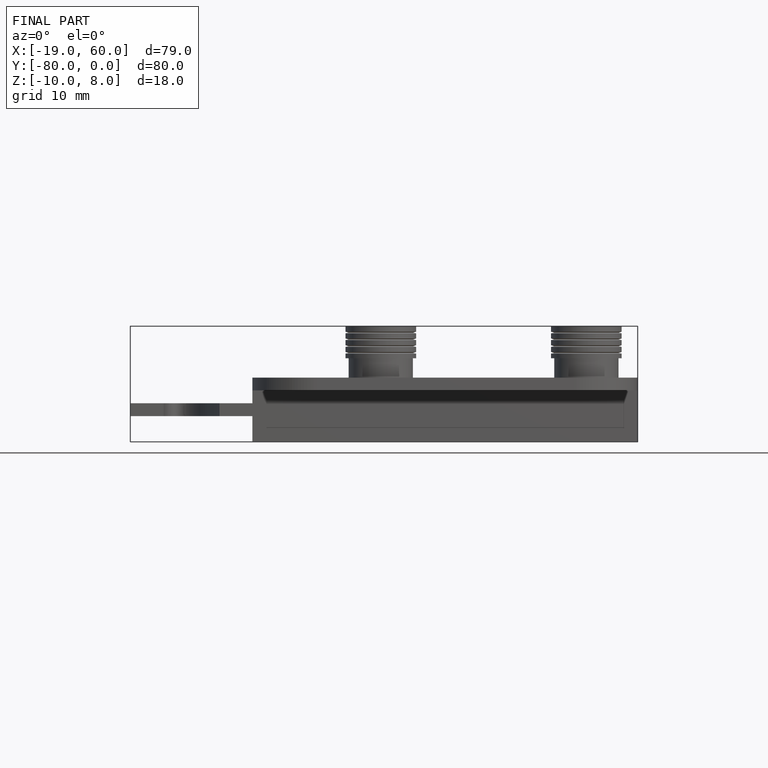
[diagram: finished part — front view with bounding-box wireframe]
